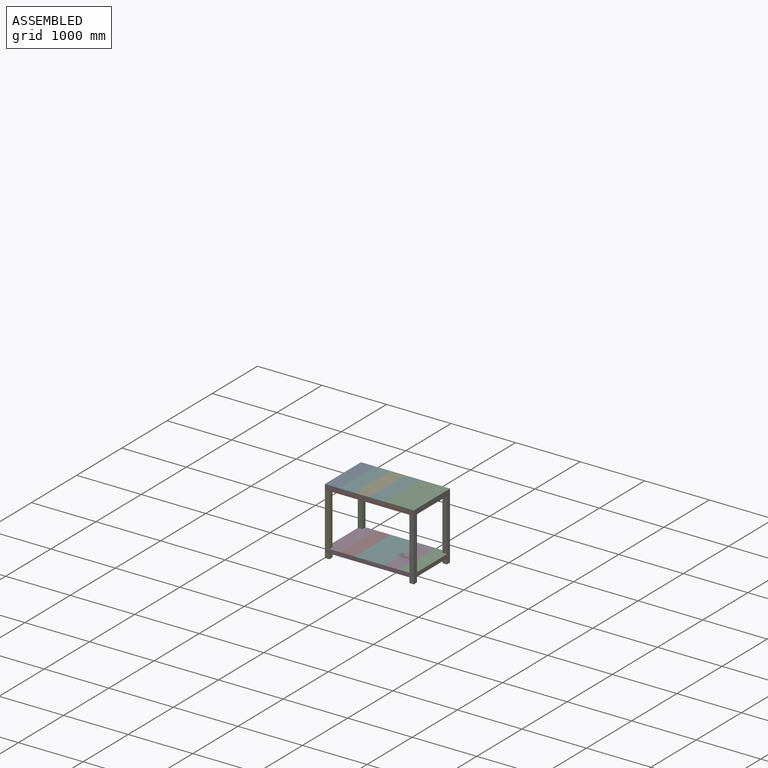
[diagram: assembled view]
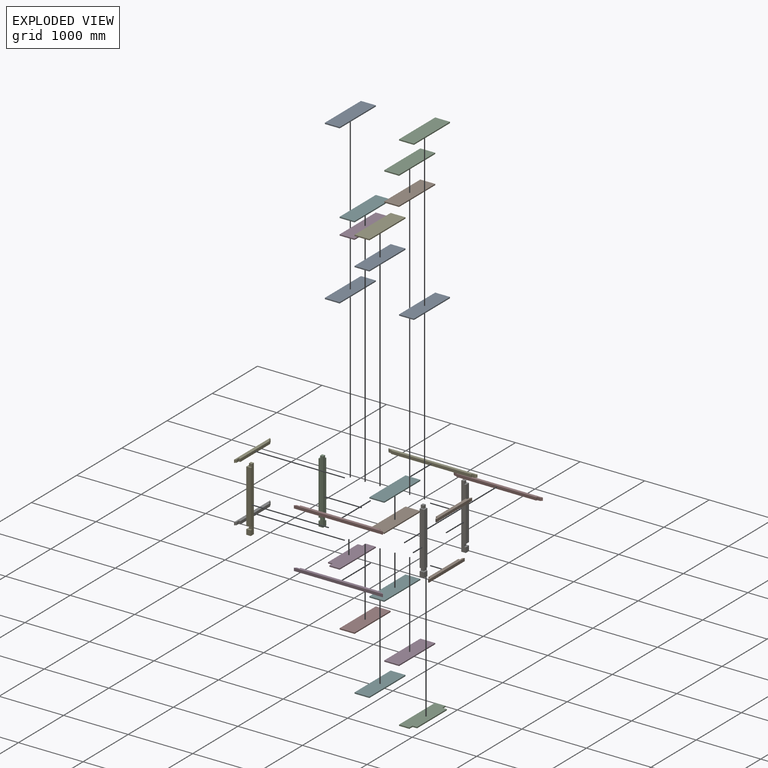
[diagram: exploded view]
GUIDED TOUR — MATED ASSEMBLY (Onshape document 5daf5616dd7f4dcc8bc9a4c9, AutoMate assembly 5daf5616dd7f4dcc8bc9a4c9_2254bccb1e6975af0c094e5a_7c94794f6a052412eeb7758e_default)

This assembly has 30 components, labeled P0..P29 below (a component is one placed occurrence of a part; the same part can appear more than once), held together by 29 mates. A mate is a constraint between two components; its type names the relative motion it leaves free:
  FASTENED — locks the two components together rigidly (no relative motion).
Axis/direction vectors are unit vectors and 'through' points are millimeter coordinates, both in the assembly's world frame.

MATES
  1. FASTENED "Fastened 22": P29 <-> P26, direction (0.000, 0.000, -1.000) through (473.28, -66.81, 1239.78) mm
  2. FASTENED "Fastened 17": P17 <-> P0, direction (0.000, 0.000, -1.000) through (703.28, -66.81, 1221.78) mm
  3. FASTENED "Fastened 15": P24 <-> P25, direction (0.000, 0.000, -1.000) through (243.28, -66.81, 1221.78) mm
  4. FASTENED "Fastened 6": P18 <-> P15, direction (0.000, 1.000, 0.000) through (-421.72, -91.81, 324.28) mm
  5. FASTENED "Fastened 16": P25 <-> P17, direction (0.000, 0.000, -1.000) through (473.28, -66.81, 1221.78) mm
  6. FASTENED "Fastened 11": P18 <-> P12, direction (0.000, 1.000, 0.000) through (-421.72, -91.81, 1199.28) mm
  7. FASTENED "Fastened 2": P6 <-> P1, direction (1.000, 0.000, 0.000) through (908.28, -91.81, 1199.28) mm
  8. FASTENED "Fastened 8": P6 <-> P9, direction (1.000, 0.000, 0.000) through (908.28, -91.81, 324.28) mm
  9. FASTENED "Fastened 21": P20 <-> P29, direction (0.000, 0.000, -1.000) through (243.28, -66.81, 1239.78) mm
  10. FASTENED "Fastened 9": P18 <-> P22, direction (-1.000, 0.000, 0.000) through (-421.72, -91.81, 324.28) mm
  11. FASTENED "Fastened 7": P28 <-> P4, direction (-1.000, 0.000, 0.000) through (-421.72, -841.81, 1199.28) mm
  12. FASTENED "Fastened 4": P14 <-> P7, direction (0.000, -1.000, 0.000) through (908.28, -841.81, 1199.28) mm
  13. FASTENED "Fastened 26": P23 <-> P5, direction (0.000, 0.000, -1.000) through (13.28, -66.81, 346.78) mm
  14. FASTENED "Fastened 14": P11 <-> P24, direction (0.000, 0.000, -1.000) through (13.28, -66.81, 1221.78) mm
  15. FASTENED "Fastened 27": P5 <-> P13, direction (0.000, 0.000, -1.000) through (243.28, -66.81, 346.78) mm
  16. FASTENED "Fastened 20": P21 <-> P20, direction (0.000, 0.000, -1.000) through (13.28, -66.81, 1239.78) mm
  17. FASTENED "Fastened 13": P8 <-> P11, direction (0.000, 0.000, 1.000) through (-216.72, -66.81, 1221.78) mm
  18. FASTENED "Fastened 28": P13 <-> P27, direction (0.000, 0.000, -1.000) through (473.28, -66.81, 346.78) mm
  19. FASTENED "Fastened 19": P16 <-> P21, direction (0.000, 0.000, -1.000) through (-216.72, -66.81, 1239.78) mm
  20. FASTENED "Fastened 5": P14 <-> P3, direction (0.000, -1.000, 0.000) through (908.28, -841.81, 324.28) mm
  21. FASTENED "Fastened 24": P22 <-> P19, direction (0.000, 0.000, 1.000) through (-396.72, -136.81, 346.78) mm
  22. FASTENED "Fastened 10": P6 <-> P12, direction (0.000, 1.000, 0.000) through (908.28, -91.81, 1199.28) mm
  23. FASTENED "Fastened 3": P18 <-> P4, direction (-1.000, 0.000, 0.000) through (-421.72, -91.81, 1199.28) mm
  24. FASTENED "Fastened 25": P19 <-> P23, direction (0.000, 0.000, -1.000) through (-216.72, -66.81, 346.78) mm
  25. FASTENED "Fastened 18": P8 <-> P16, direction (0.000, 0.000, 1.000) through (-446.72, -66.81, 1239.78) mm
  26. FASTENED "Fastened 1": P14 <-> P1, direction (1.000, 0.000, 0.000) through (908.28, -841.81, 1199.28) mm
  27. FASTENED "Fastened 29": P27 <-> P2, direction (0.000, 0.000, -1.000) through (703.28, -66.81, 346.78) mm
  28. FASTENED "Fastened 23": P26 <-> P10, direction (0.000, 0.000, -1.000) through (703.28, -66.81, 1239.78) mm
  29. FASTENED "Fastened 12": P12 <-> P8, direction (0.000, 0.000, 1.000) through (-446.72, -66.81, 1221.78) mm

ASSEMBLY ORDER
  1. P29 — the base component [order verified]
  2. P20 [order verified]
  3. P16 [order verified]
  4. P10 [order verified]
  5. P21 [order verified]
  6. P26 [order verified]
  7. P0 [order verified]
  8. P8 [order verified]
  9. P25 [order verified]
  10. P24 [order verified]
  11. P11 [order verified]
  12. P17 [order verified]
  13. P12 [order verified]
  14. P19 [order verified]
  15. P13 [order verified]
  16. P23 [order verified]
  17. P27 [order verified]
  18. P5 [order verified]
  19. P14 [order verified]
  20. P6 [order verified]
  21. P28 [order verified]
  22. P18 [order verified]
  23. P4 [order verified]
  24. P9 [order verified]
  25. P2 [order verified]
  26. P1 [order verified]
  27. P22 [order verified]
  28. P3 [order verified]
  29. P15 [order verified]
  30. P7 [order verified]
(P0, P16, P17, P20, P21 verified with a relaxed clearance tolerance: the source model stores slight part interference there.)
Order-tag legend:
  [order verified] — this step's position reverses a verified removal order: the component was checked to insert without passing through the ones already placed.

Of the 30 components, 30 carry the full construction recipe — the FeatureScript program that regenerates the part's solid from scratch; the rest are supplied as boundary geometry only.
Because this assembly has more than 12 components, the tour below covers the 12 most significant ones individually (every recipe-attached component first, then the largest by part volume), in assembly order; the remaining 18 are summarized together in a grouped section at the end.
Each toured component is shown spotlighted twice — in the assembled view, then in the exploded view, where a leader line traces a displaced component back to its assembled socket (saturated green if recipe-attached, orange if geometry-only; every other component desaturated gray) — followed by its recipe or geometry summary and the mates that hold it.
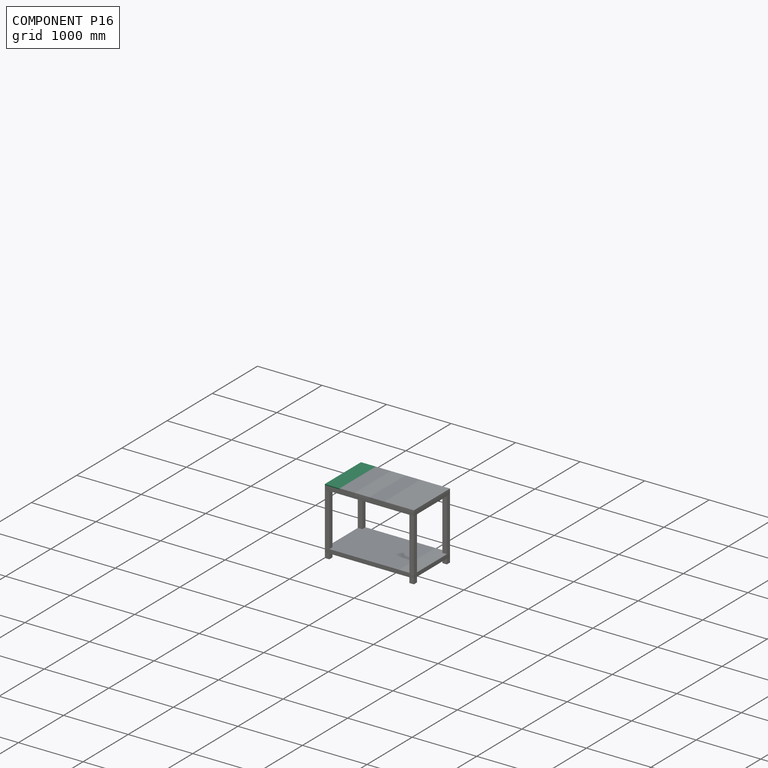
[diagram: component P16 — assembled]
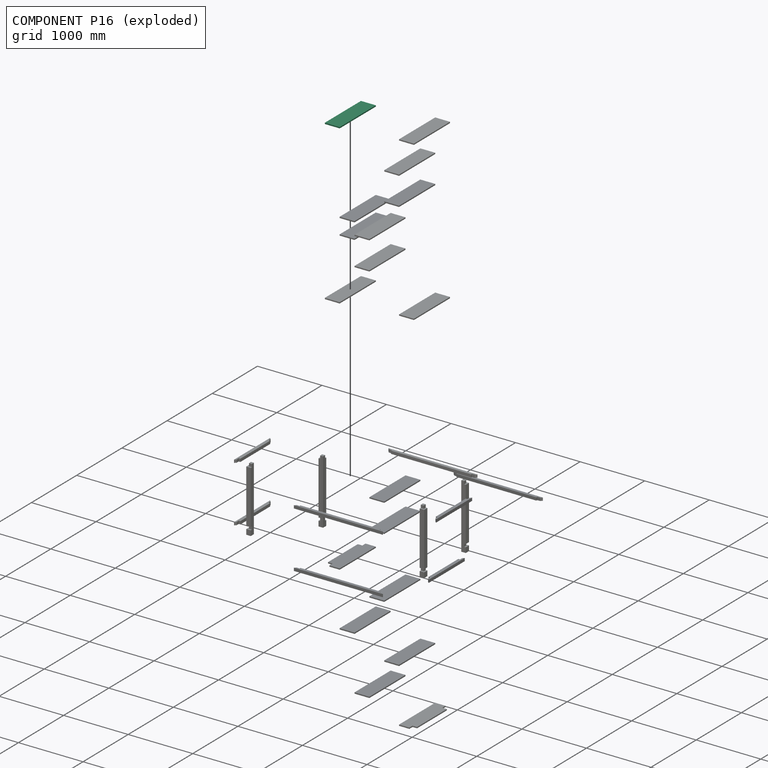
[diagram: component P16 — exploded]
COMPONENT P16 — same part as P0 (CADFS 00208391); its construction recipe is shown at P0.
Held by: FASTENED mate "Fastened 19" to P21; FASTENED mate "Fastened 18" to P8.
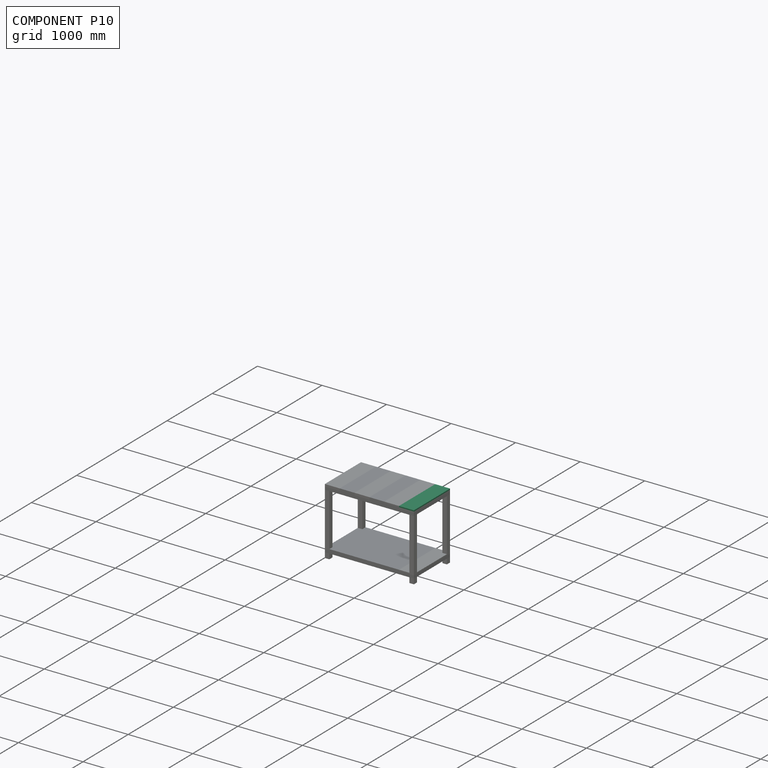
[diagram: component P10 — assembled]
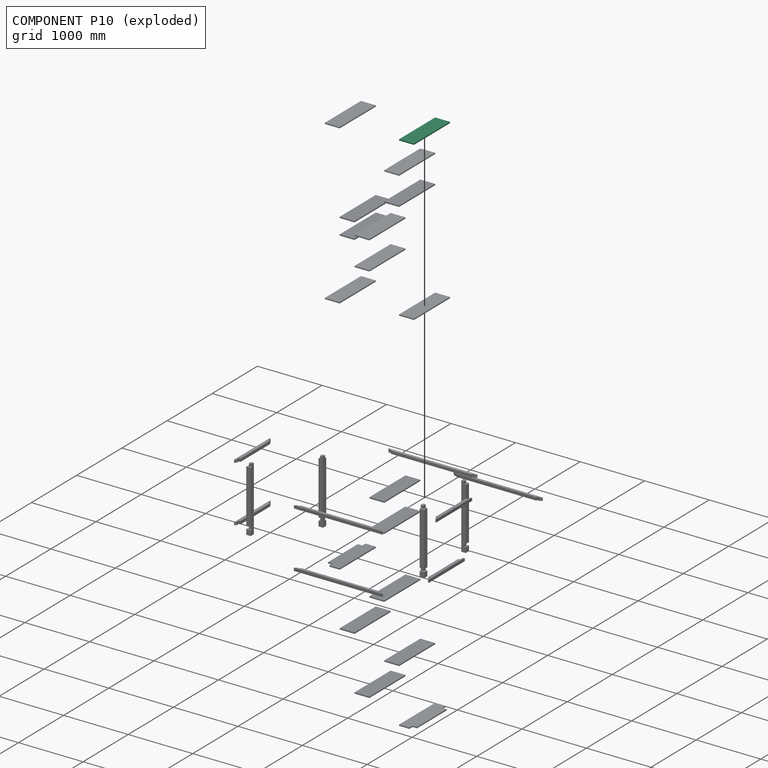
[diagram: component P10 — exploded]
COMPONENT P10 — same part as P0 (CADFS 00208391); its construction recipe is shown at P0.
Held by: FASTENED mate "Fastened 23" to P26.
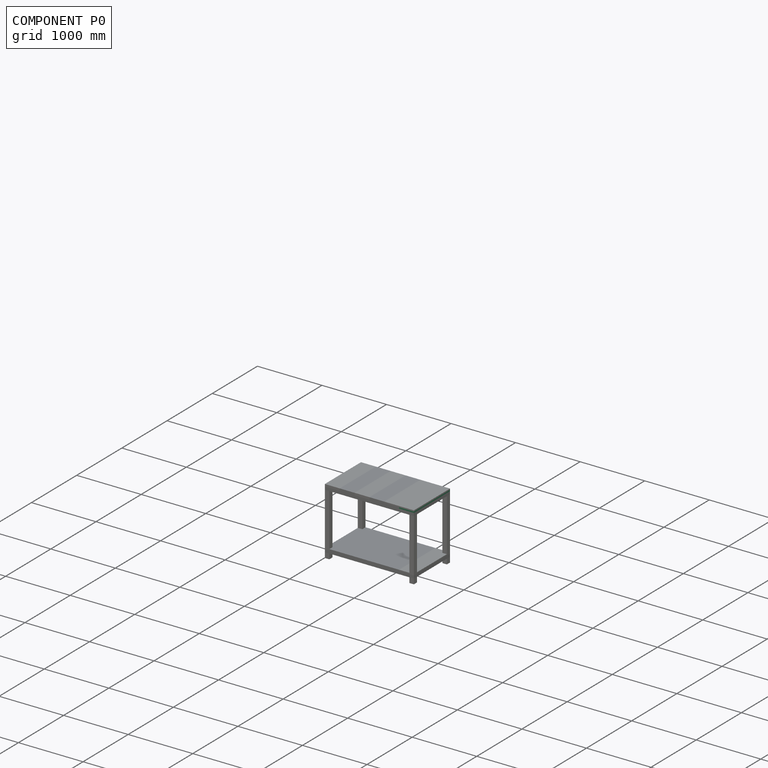
[diagram: component P0 — assembled]
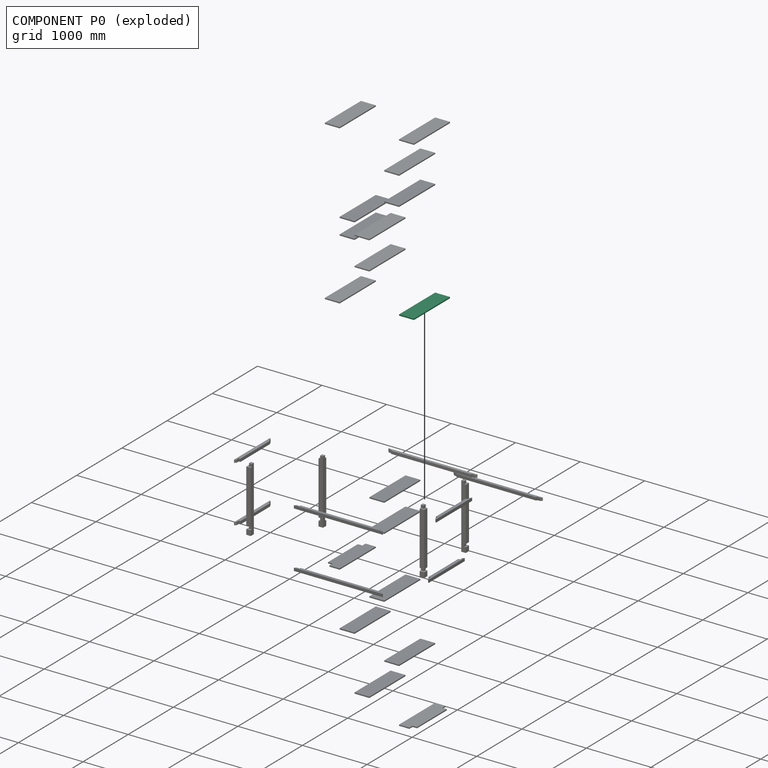
[diagram: component P0 — exploded]
COMPONENT P0 — recipe-attached (CADFS 00208391, mesh-verified: the recipe's output STEP matches this component's geometry to below the mesh-comparison resolution (tessellation chordal tolerance ~1.25 mm)).
Held by: FASTENED mate "Fastened 17" to P17.
Construction recipe (FeatureScript — the CAD program that rebuilds this solid; sketch coordinates are in the units given by the * unit suffixes, e.g. mm):

FeatureScript 1511;
import(path : "onshape/std/geometry.fs", version : "1511.0");
import(path : "onshape/std/common.fs", version : "1511.0");
const mm = millimeter;
const VERTEX = EntityType.VERTEX;
const EDGE = EntityType.EDGE;
const FACE = EntityType.FACE;
const BODY = EntityType.BODY;
function v(x, y){return vector(x, y);}
function OD(order){return orderDisambiguation(order);}
function OSD(set){return originalSetDisambiguation(set);}
function TD(topology){return topologyDisambiguation(topology);}
function TDD(query){return trueDependencyDisambiguation(query);}
function sQuery(a, b, c) {return sketchEntityQuery(a, b, c);}

annotation { "Feature Type Name" : "Feature", "Feature Type Description" : "" }
export const myFeature = defineFeature(function(context is Context, id is Id, definition is map)
    precondition{}
    {
        {
            var Q0;
            Q0=qCreatedBy(makeId("Front.planeOp"),FACE);
            var sketch = newSketch(context, id + "F0", { "sketchPlane" : qUnion([Q0])});
            skLineSegment(sketch, "E0.bottom", {"start": v(-98, 9.5) * mm, "end": v(132, 9.5) * mm});
            skLineSegment(sketch, "E0.top", {"start": v(-98, -8.5) * mm, "end": v(132, -8.5) * mm});
            skLineSegment(sketch, "E0.left", {"start": v(-98, 9.5) * mm, "end": v(-98, -8.5) * mm});
            skLineSegment(sketch, "E0.right", {"start": v(132, 9.5) * mm, "end": v(132, -8.5) * mm});
            skSolve(sketch);
        }
        {
            var Q0;
            Q0=makeQuery(id+"F0.imprint","IMPRINT",FACE,{"disambiguationData":[TD([[makeQuery(id+"F0.imprint","IMPRINT",EDGE,{"derivedFrom":sQuery(id+"F0.wireOp",EDGE,"E0.bottom")}),-1.0]])]});
            extrude(context, id + "F1", {"entities" : qUnion([Q0]), "oppositeDirection" : true, "depth" : 800 * mm});
        }
    });
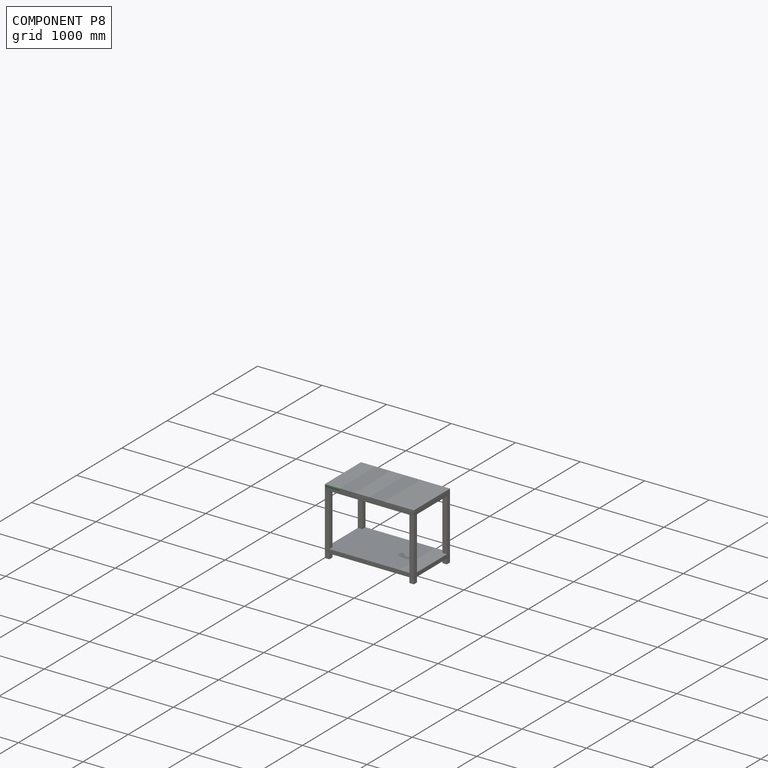
[diagram: component P8 — assembled]
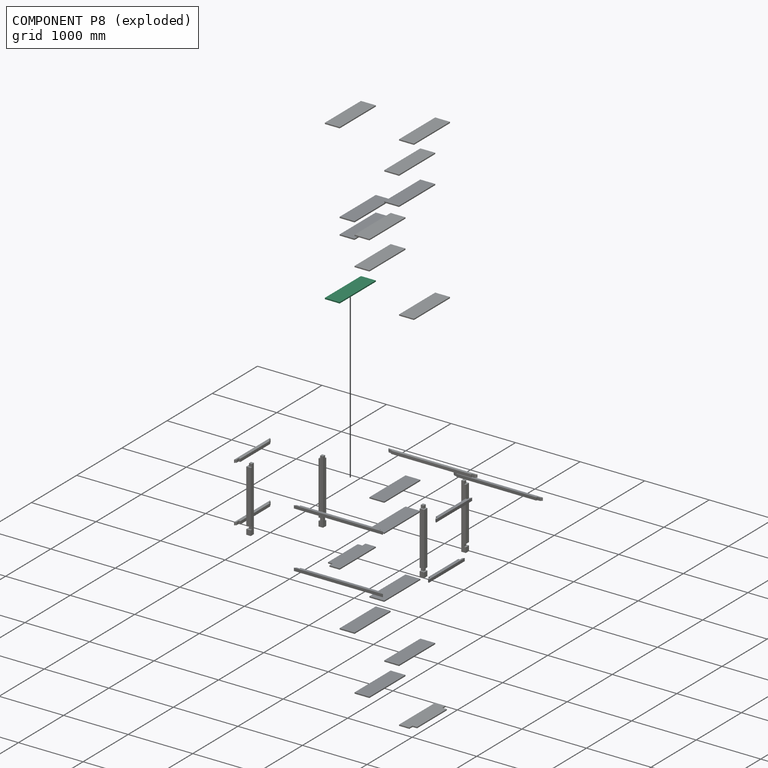
[diagram: component P8 — exploded]
COMPONENT P8 — same part as P0 (CADFS 00208391); its construction recipe is shown at P0.
Held by: FASTENED mate "Fastened 13" to P11; FASTENED mate "Fastened 18" to P16; FASTENED mate "Fastened 12" to P12.
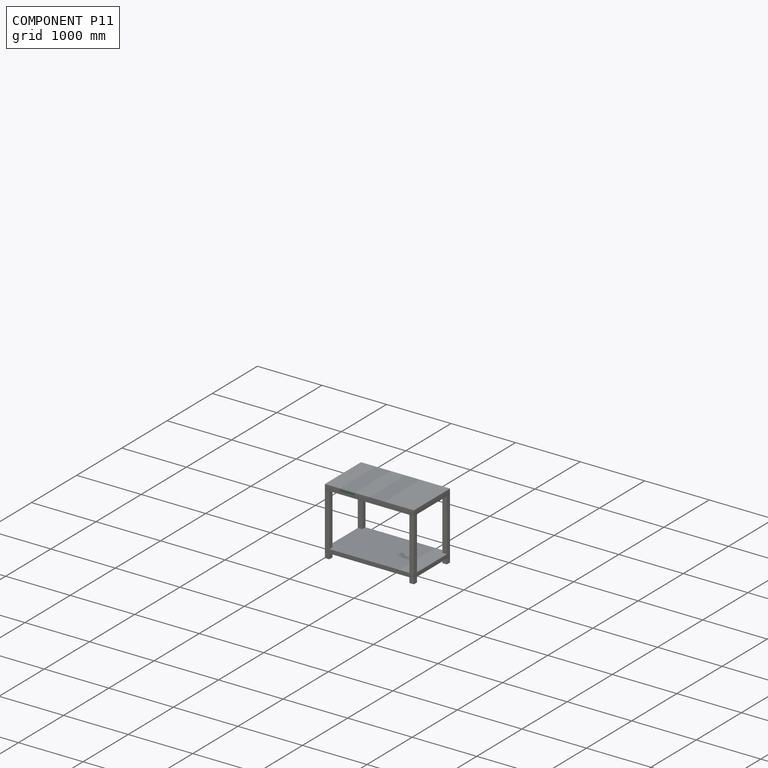
[diagram: component P11 — assembled]
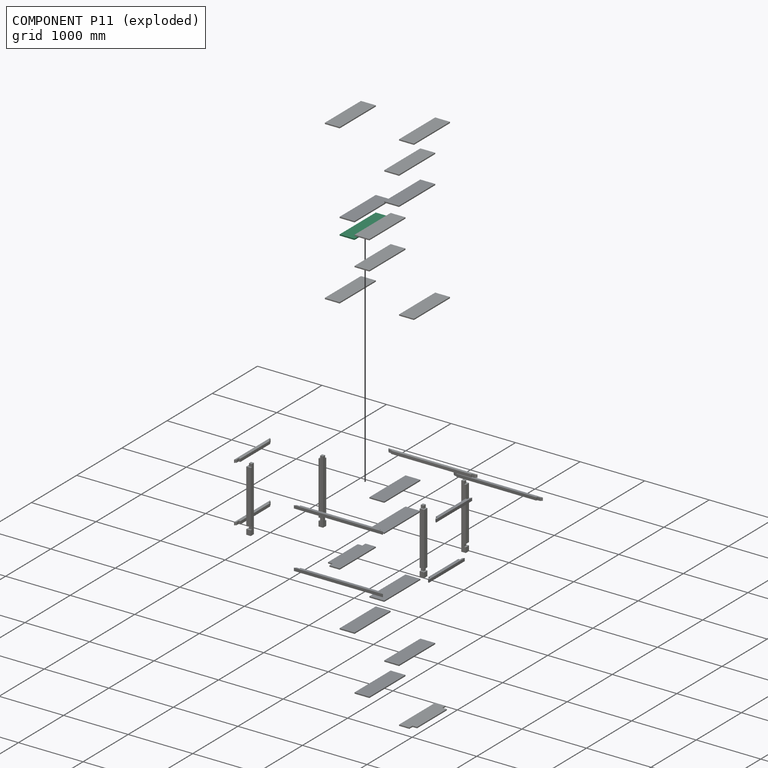
[diagram: component P11 — exploded]
COMPONENT P11 — same part as P0 (CADFS 00208391); its construction recipe is shown at P0.
Held by: FASTENED mate "Fastened 14" to P24; FASTENED mate "Fastened 13" to P8.
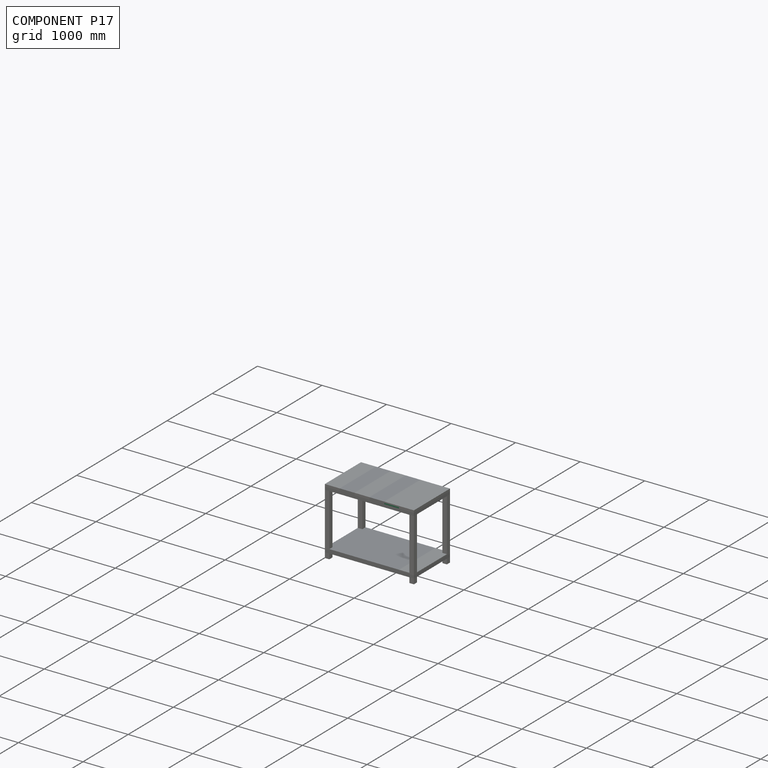
[diagram: component P17 — assembled]
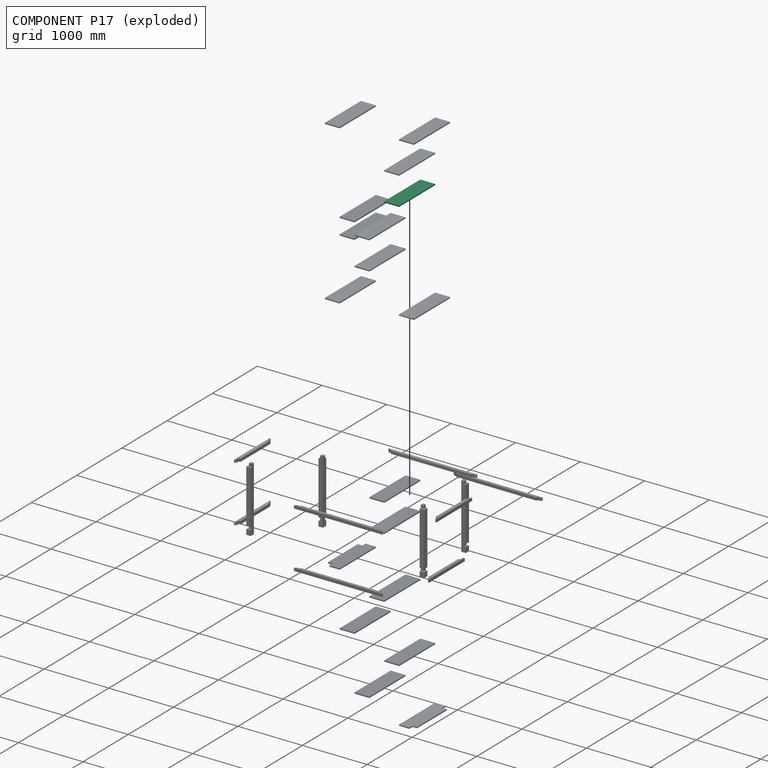
[diagram: component P17 — exploded]
COMPONENT P17 — same part as P0 (CADFS 00208391); its construction recipe is shown at P0.
Held by: FASTENED mate "Fastened 17" to P0; FASTENED mate "Fastened 16" to P25.
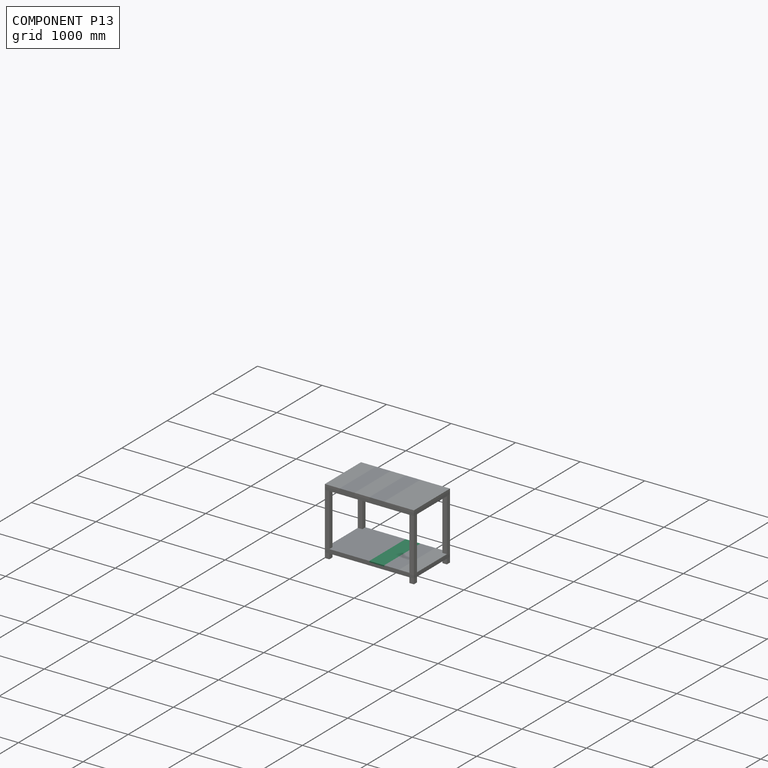
[diagram: component P13 — assembled]
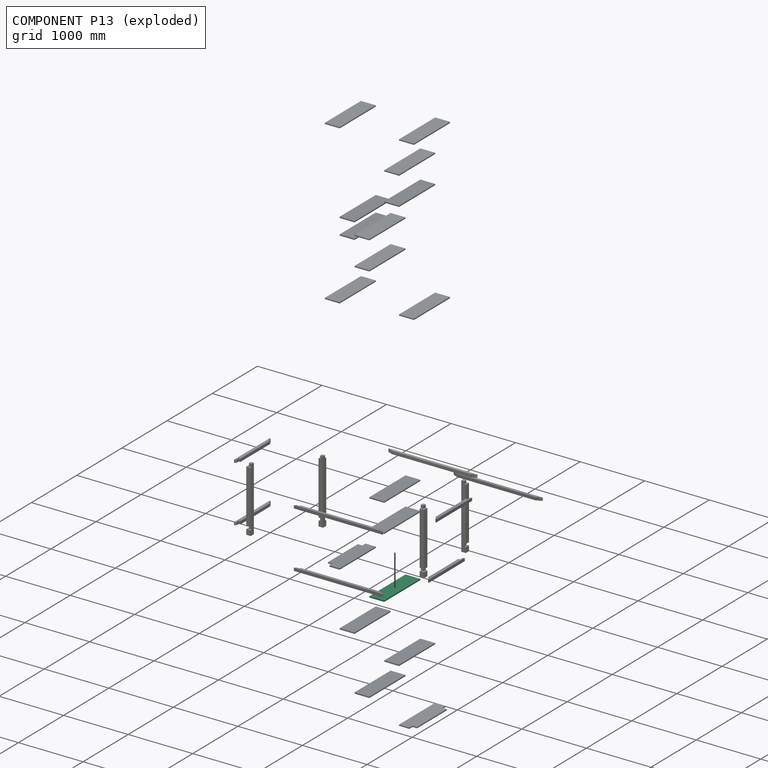
[diagram: component P13 — exploded]
COMPONENT P13 — same part as P0 (CADFS 00208391); its construction recipe is shown at P0.
Held by: FASTENED mate "Fastened 27" to P5; FASTENED mate "Fastened 28" to P27.
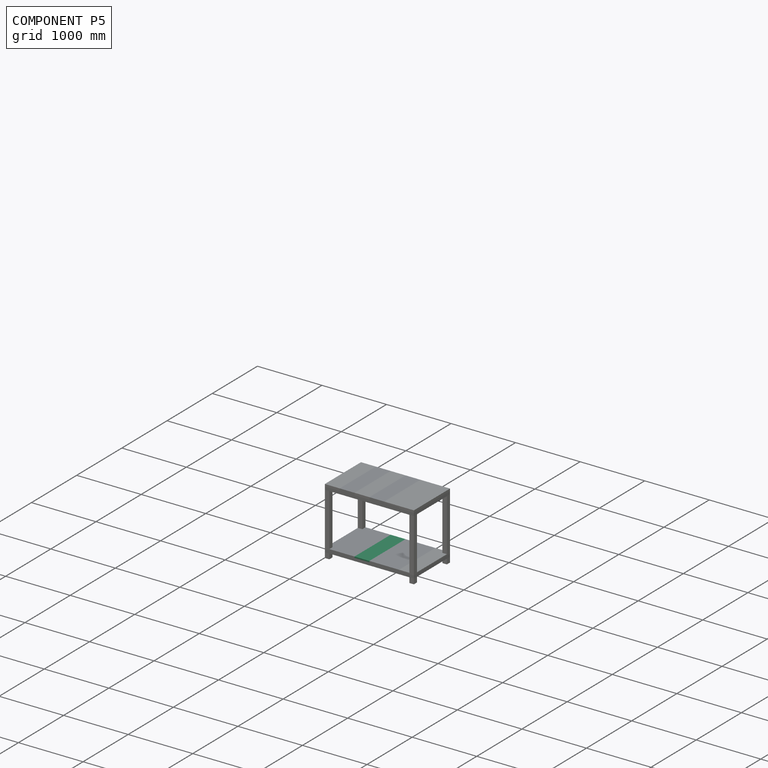
[diagram: component P5 — assembled]
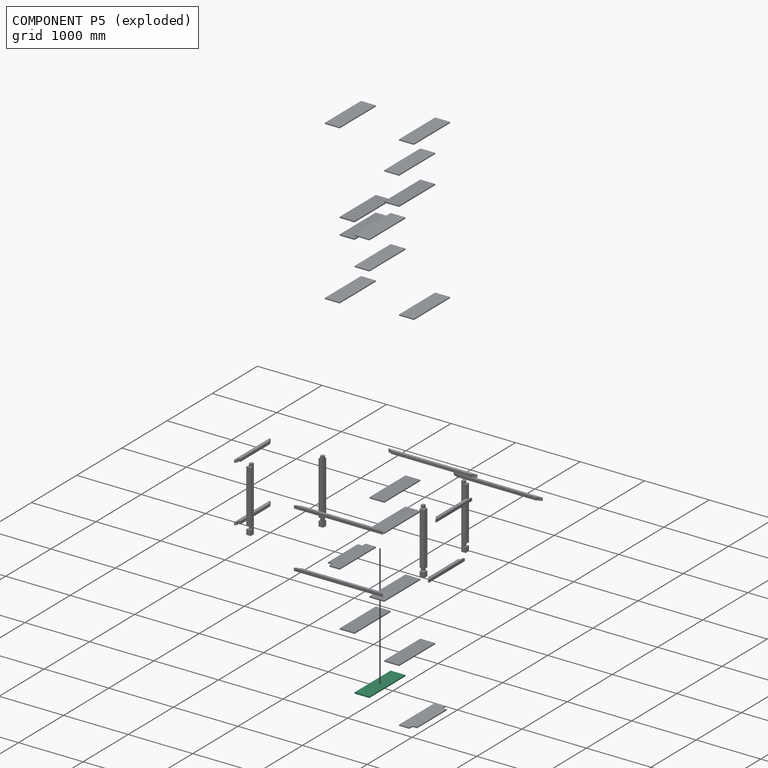
[diagram: component P5 — exploded]
COMPONENT P5 — same part as P0 (CADFS 00208391); its construction recipe is shown at P0.
Held by: FASTENED mate "Fastened 26" to P23; FASTENED mate "Fastened 27" to P13.
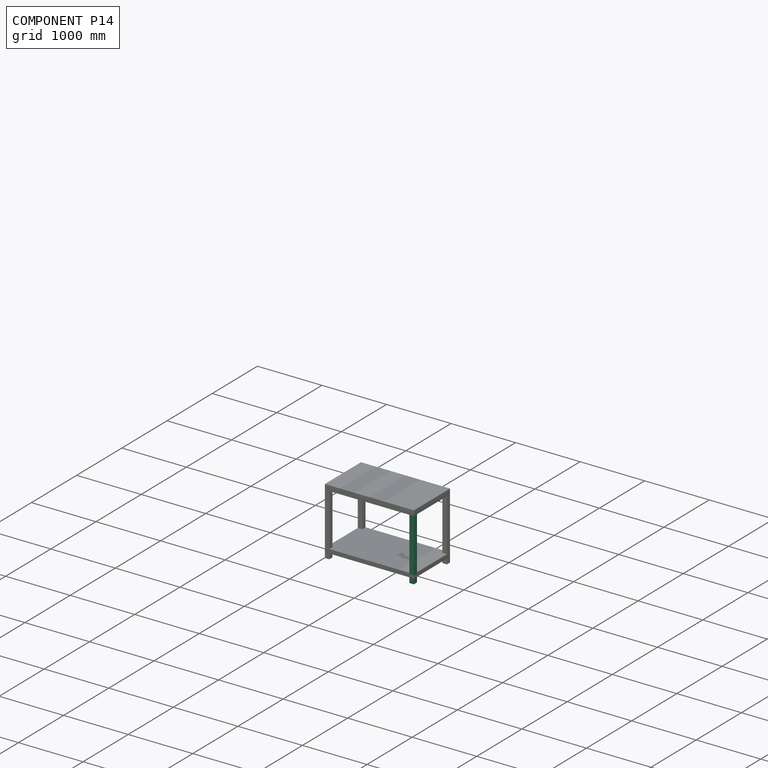
[diagram: component P14 — assembled]
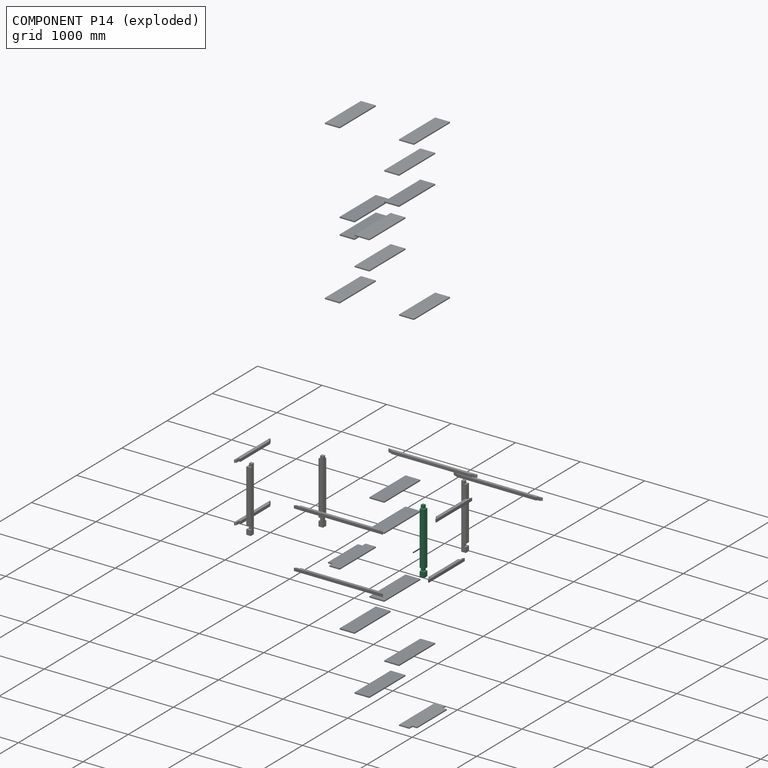
[diagram: component P14 — exploded]
COMPONENT P14 — same part as P6 (CADFS 00208388); its construction recipe is shown at P6.
Held by: FASTENED mate "Fastened 4" to P7; FASTENED mate "Fastened 5" to P3; FASTENED mate "Fastened 1" to P1.
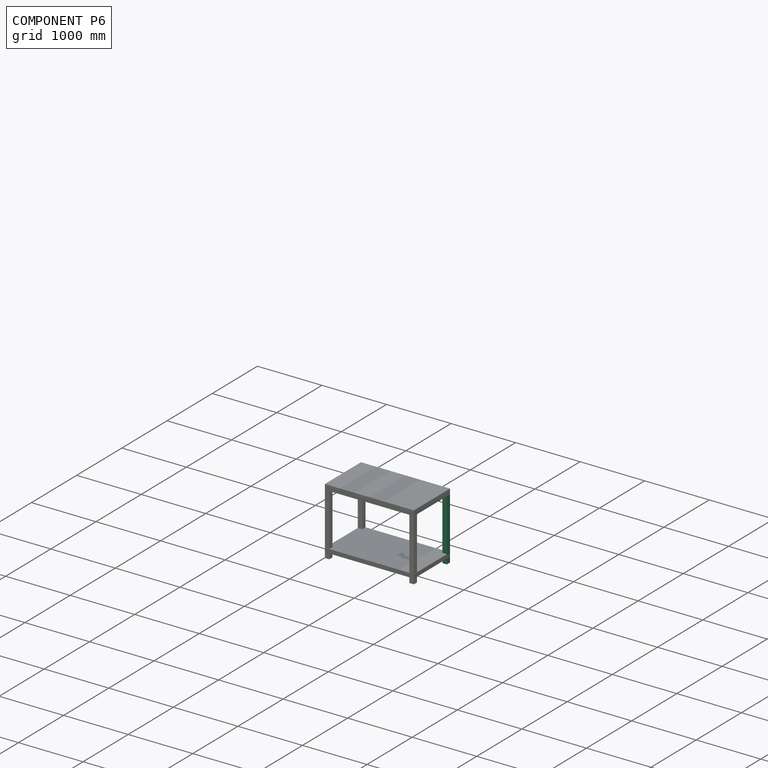
[diagram: component P6 — assembled]
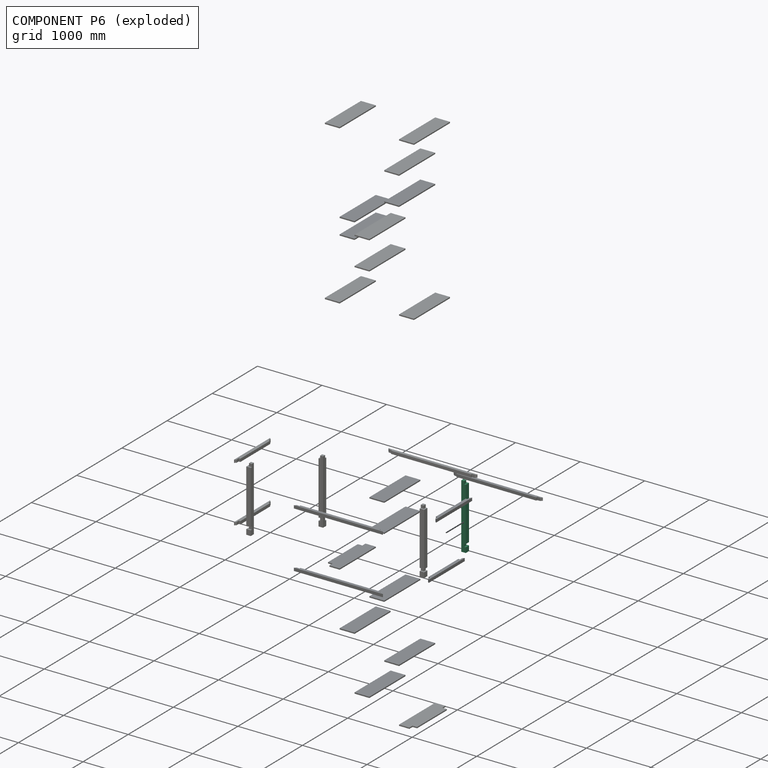
[diagram: component P6 — exploded]
COMPONENT P6 — recipe-attached (CADFS 00208388, mesh-verified: the recipe's output STEP matches this component's geometry to below the mesh-comparison resolution (tessellation chordal tolerance ~1.51 mm)).
Held by: FASTENED mate "Fastened 2" to P1; FASTENED mate "Fastened 8" to P9; FASTENED mate "Fastened 10" to P12.
Construction recipe (FeatureScript — the CAD program that rebuilds this solid; sketch coordinates are in the units given by the * unit suffixes, e.g. mm):

FeatureScript 1511;
import(path : "onshape/std/geometry.fs", version : "1511.0");
import(path : "onshape/std/common.fs", version : "1511.0");
const mm = millimeter;
const VERTEX = EntityType.VERTEX;
const EDGE = EntityType.EDGE;
const FACE = EntityType.FACE;
const BODY = EntityType.BODY;
function v(x, y){return vector(x, y);}
function OD(order){return orderDisambiguation(order);}
function OSD(set){return originalSetDisambiguation(set);}
function TD(topology){return topologyDisambiguation(topology);}
function TDD(query){return trueDependencyDisambiguation(query);}
function sQuery(a, b, c) {return sketchEntityQuery(a, b, c);}

annotation { "Feature Type Name" : "Feature", "Feature Type Description" : "" }
export const myFeature = defineFeature(function(context is Context, id is Id, definition is map)
    precondition{}
    {
        {
            var Q0;
            Q0=qCreatedBy(makeId("Front.planeOp"),FACE);
            var sketch = newSketch(context, id + "F0", { "sketchPlane" : qUnion([Q0])});
            skLineSegment(sketch, "E0.bottom", {"start": v(-35, 35) * mm, "end": v(35, 35) * mm});
            skLineSegment(sketch, "E0.top", {"start": v(-35, -35) * mm, "end": v(35, -35) * mm});
            skLineSegment(sketch, "E0.left", {"start": v(-35, 35) * mm, "end": v(-35, -35) * mm});
            skLineSegment(sketch, "E0.right", {"start": v(35, 35) * mm, "end": v(35, -35) * mm});
            skSolve(sketch);
        }
        {
            var Q0;
            Q0=makeQuery(id+"F0.imprint","IMPRINT",FACE,{"disambiguationData":[TD([[makeQuery(id+"F0.imprint","IMPRINT",EDGE,{"derivedFrom":sQuery(id+"F0.wireOp",EDGE,"E0.bottom")}),-1.0]])]});
            extrude(context, id + "F1", {"entities" : qUnion([Q0]), "oppositeDirection" : true, "depth" : 1000 * mm});
        }
        {
            var Q0;
            Q0=makeQuery(id+"F1.opExtrude","SWEPT_FACE",FACE,{"disambiguationData":[OSD([sQuery(id+"F0.wireOp",EDGE,"E0.bottom")])]});
            var sketch = newSketch(context, id + "F2", { "sketchPlane" : qUnion([Q0])});
            skLineSegment(sketch, "E1.bottom", {"start": v(-35, 45) * mm, "end": v(35, 45) * mm});
            skLineSegment(sketch, "E1.top", {"start": v(-35, 0) * mm, "end": v(35, 0) * mm});
            skLineSegment(sketch, "E1.left", {"start": v(-35, 45) * mm, "end": v(-35, 0) * mm});
            skLineSegment(sketch, "E1.right", {"start": v(35, 45) * mm, "end": v(35, 0) * mm});
            skSolve(sketch);
        }
        {
            var Q0;
            Q0=makeQuery(id+"F2.imprint","IMPRINT",FACE,{"disambiguationData":[TD([[makeQuery(id+"F2.imprint","IMPRINT",EDGE,{"derivedFrom":sQuery(id+"F2.wireOp",EDGE,"E1.bottom")}),-1.0]])]});
            extrude(context, id + "F3", {"entities" : qUnion([Q0]), "operationType" : NewBodyOperationType.REMOVE, "oppositeDirection" : true, "depth" : 25 * mm});
        }
        {
            var Q0;
            Q0=makeQuery(id+"F1.opExtrude","SWEPT_FACE",FACE,{"disambiguationData":[OSD([sQuery(id+"F0.wireOp",EDGE,"E0.right")])]});
            var sketch = newSketch(context, id + "F4", { "sketchPlane" : qUnion([Q0])});
            skLineSegment(sketch, "E2.bottom", {"start": v(45, 10) * mm, "end": v(0, 10) * mm});
            skLineSegment(sketch, "E2.top", {"start": v(45, -35) * mm, "end": v(0, -35) * mm});
            skLineSegment(sketch, "E2.left", {"start": v(45, 10) * mm, "end": v(45, -35) * mm});
            skLineSegment(sketch, "E2.right", {"start": v(0, 10) * mm, "end": v(0, -35) * mm});
            skSolve(sketch);
        }
        {
            var Q0;
            Q0=makeQuery(id+"F4.imprint","IMPRINT",FACE,{"disambiguationData":[TD([[makeQuery(id+"F4.imprint","IMPRINT",EDGE,{"derivedFrom":sQuery(id+"F4.wireOp",EDGE,"E2.top")}),-1.0]])]});
            extrude(context, id + "F5", {"entities" : qUnion([Q0]), "operationType" : NewBodyOperationType.REMOVE, "oppositeDirection" : true, "depth" : 25 * mm});
        }
        {
            var Q0;
            Q0=makeQuery(id+"F1.opExtrude","SWEPT_FACE",FACE,{"disambiguationData":[OSD([sQuery(id+"F0.wireOp",EDGE,"E0.bottom")])]});
            var sketch = newSketch(context, id + "F6", { "sketchPlane" : qUnion([Q0])});
            skLineSegment(sketch, "E3.bottom", {"start": v(-35, 920) * mm, "end": v(35, 920) * mm});
            skLineSegment(sketch, "E3.top", {"start": v(-35, 875) * mm, "end": v(35, 875) * mm});
            skLineSegment(sketch, "E3.left", {"start": v(-35, 920) * mm, "end": v(-35, 875) * mm});
            skLineSegment(sketch, "E3.right", {"start": v(35, 920) * mm, "end": v(35, 875) * mm});
            skSolve(sketch);
        }
        {
            var Q0;
            Q0=makeQuery(id+"F6.imprint","IMPRINT",FACE,{"disambiguationData":[TD([[makeQuery(id+"F6.imprint","IMPRINT",EDGE,{"derivedFrom":sQuery(id+"F6.wireOp",EDGE,"E3.bottom")}),-1.0]])]});
            extrude(context, id + "F7", {"entities" : qUnion([Q0]), "operationType" : NewBodyOperationType.REMOVE, "oppositeDirection" : true, "depth" : 25 * mm});
        }
        {
            var Q0;
            Q0=makeQuery(id+"F1.opExtrude","SWEPT_FACE",FACE,{"disambiguationData":[OSD([sQuery(id+"F0.wireOp",EDGE,"E0.right")])]});
            var sketch = newSketch(context, id + "F8", { "sketchPlane" : qUnion([Q0])});
            skLineSegment(sketch, "E4.bottom", {"start": v(920, 10) * mm, "end": v(875, 10) * mm});
            skLineSegment(sketch, "E4.top", {"start": v(920, -35) * mm, "end": v(875, -35) * mm});
            skLineSegment(sketch, "E4.left", {"start": v(920, 10) * mm, "end": v(920, -35) * mm});
            skLineSegment(sketch, "E4.right", {"start": v(875, 10) * mm, "end": v(875, -35) * mm});
            skSolve(sketch);
        }
        {
            var Q0;
            Q0=makeQuery(id+"F8.imprint","IMPRINT",FACE,{"disambiguationData":[TD([[makeQuery(id+"F8.imprint","IMPRINT",EDGE,{"derivedFrom":sQuery(id+"F8.wireOp",EDGE,"E4.bottom")}),1.0]])]});
            extrude(context, id + "F9", {"entities" : qUnion([Q0]), "operationType" : NewBodyOperationType.REMOVE, "oppositeDirection" : true, "depth" : 25 * mm});
        }
    });
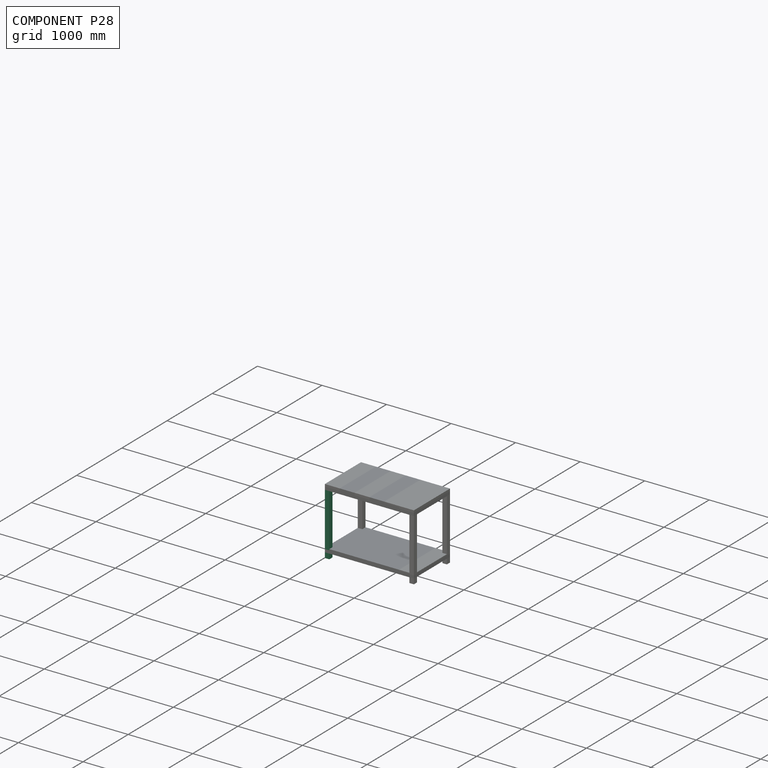
[diagram: component P28 — assembled]
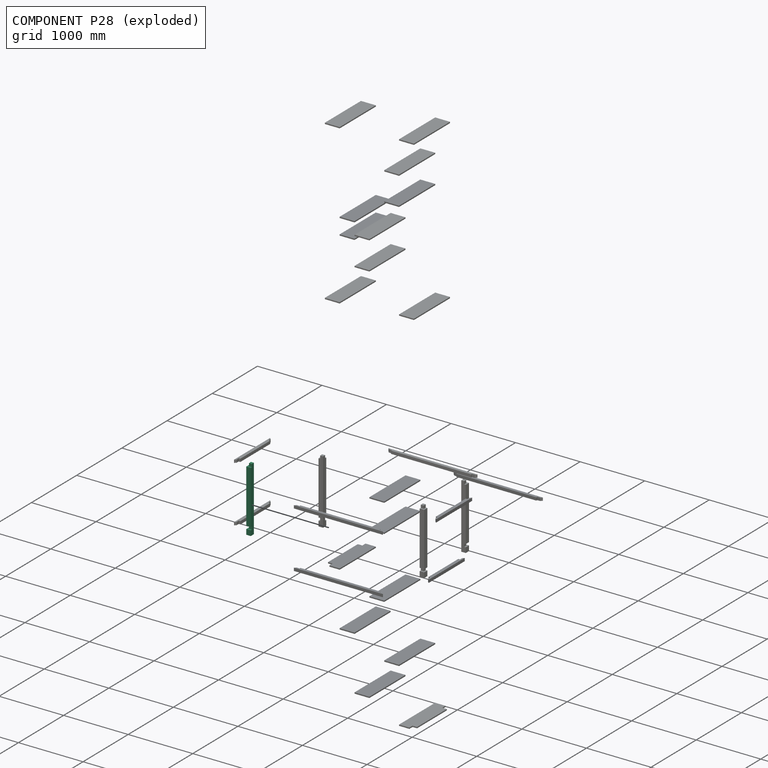
[diagram: component P28 — exploded]
COMPONENT P28 — same part as P6 (CADFS 00208388); its construction recipe is shown at P6.
Held by: FASTENED mate "Fastened 7" to P4.
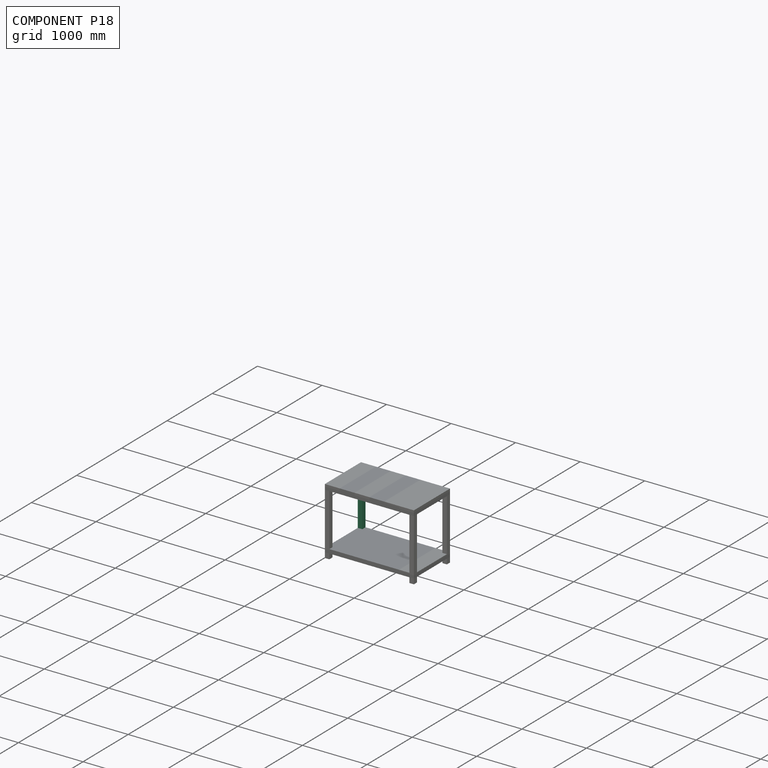
[diagram: component P18 — assembled]
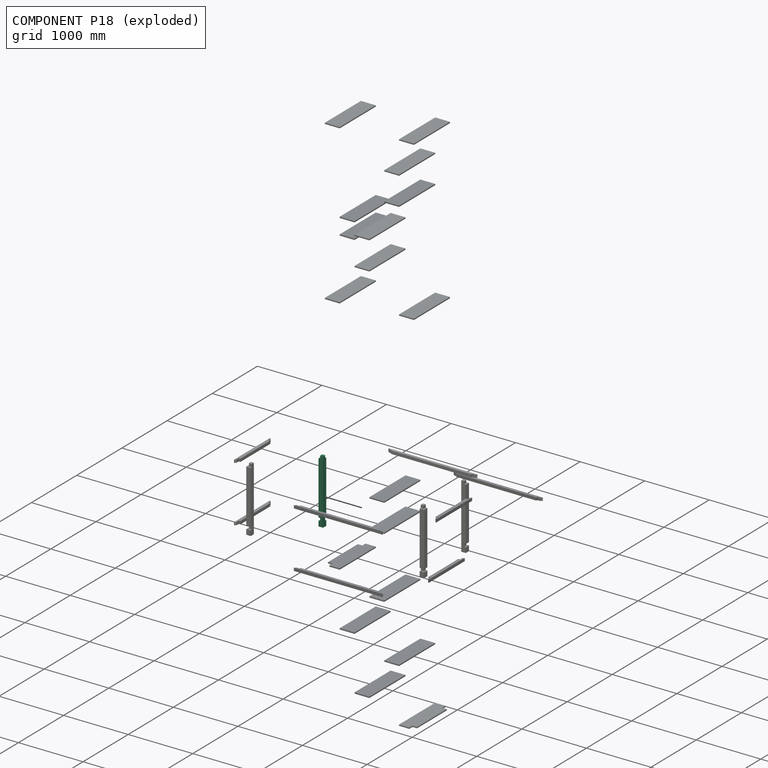
[diagram: component P18 — exploded]
COMPONENT P18 — same part as P6 (CADFS 00208388); its construction recipe is shown at P6.
Held by: FASTENED mate "Fastened 6" to P15; FASTENED mate "Fastened 11" to P12; FASTENED mate "Fastened 9" to P22; FASTENED mate "Fastened 3" to P4.
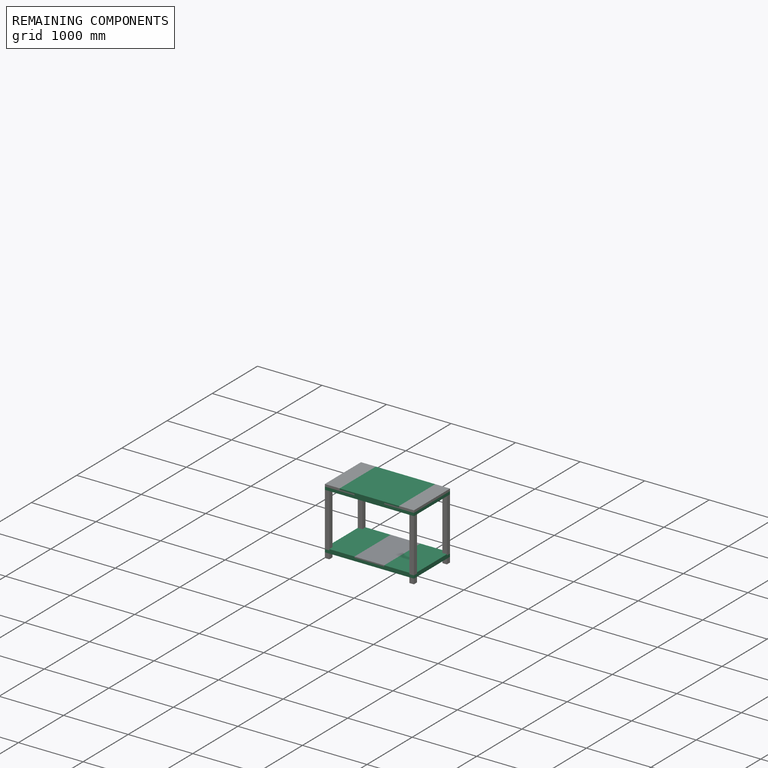
[diagram: remaining components — assembled]
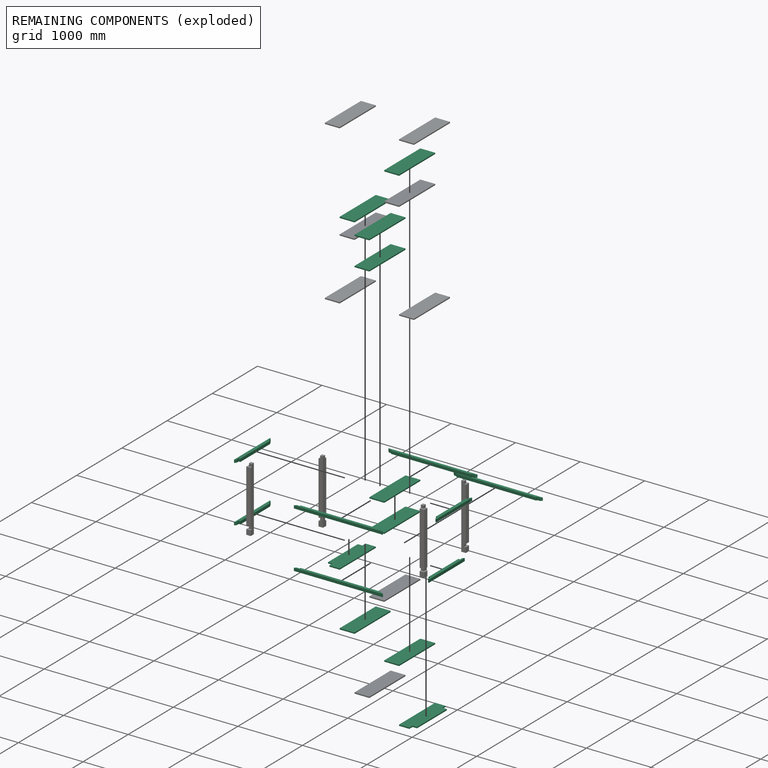
[diagram: remaining components — exploded]
REMAINING COMPONENTS (grouped) — the 18 components below fall outside the per-component tour by the significance rule stated above; both spotlight views highlight the whole group.
  P29: bounding box 800.0 x 230.0 x 18.0 mm, volume 3312000 mm^3. Recipe-attached (CADFS 00208391; recipe not printed under the significance rule). Held by: FASTENED mate "Fastened 22" to P26; FASTENED mate "Fastened 21" to P20.
  P20: bounding box 800.0 x 230.0 x 18.0 mm, volume 3312000 mm^3. Recipe-attached (CADFS 00208391; recipe not printed under the significance rule). Held by: FASTENED mate "Fastened 21" to P29; FASTENED mate "Fastened 20" to P21.
  P21: bounding box 800.0 x 230.0 x 18.0 mm, volume 3312000 mm^3. Recipe-attached (CADFS 00208391; recipe not printed under the significance rule). Held by: FASTENED mate "Fastened 20" to P20; FASTENED mate "Fastened 19" to P16.
  P26: bounding box 800.0 x 230.0 x 18.0 mm, volume 3312000 mm^3. Recipe-attached (CADFS 00208391; recipe not printed under the significance rule). Held by: FASTENED mate "Fastened 22" to P29; FASTENED mate "Fastened 23" to P10.
  P25: bounding box 800.0 x 230.0 x 18.0 mm, volume 3312000 mm^3. Recipe-attached (CADFS 00208391; recipe not printed under the significance rule). Held by: FASTENED mate "Fastened 15" to P24; FASTENED mate "Fastened 16" to P17.
  P24: bounding box 800.0 x 230.0 x 18.0 mm, volume 3312000 mm^3. Recipe-attached (CADFS 00208391; recipe not printed under the significance rule). Held by: FASTENED mate "Fastened 15" to P25; FASTENED mate "Fastened 14" to P11.
  P12: bounding box 1380.0 x 45.0 x 43.5 mm, volume 2559321 mm^3. Recipe-attached (CADFS 00208390; recipe not printed under the significance rule). Held by: FASTENED mate "Fastened 11" to P18; FASTENED mate "Fastened 10" to P6; FASTENED mate "Fastened 12" to P8.
  P19: bounding box 800.0 x 230.0 x 18.0 mm, volume 3135600 mm^3. Recipe-attached (CADFS 00208392; recipe not printed under the significance rule). Held by: FASTENED mate "Fastened 24" to P22; FASTENED mate "Fastened 25" to P23.
  P23: bounding box 800.0 x 230.0 x 18.0 mm, volume 3312000 mm^3. Recipe-attached (CADFS 00208391; recipe not printed under the significance rule). Held by: FASTENED mate "Fastened 26" to P5; FASTENED mate "Fastened 25" to P19.
  P27: bounding box 800.0 x 230.0 x 18.0 mm, volume 3312000 mm^3. Recipe-attached (CADFS 00208391; recipe not printed under the significance rule). Held by: FASTENED mate "Fastened 28" to P13; FASTENED mate "Fastened 29" to P2.
  P4: bounding box 800.0 x 50.0 x 45.0 mm, volume 1614375 mm^3. Recipe-attached (CADFS 00208389; recipe not printed under the significance rule). Held by: FASTENED mate "Fastened 7" to P28; FASTENED mate "Fastened 3" to P18.
  P9: bounding box 800.0 x 50.0 x 45.0 mm, volume 1614375 mm^3. Recipe-attached (CADFS 00208389; recipe not printed under the significance rule). Held by: FASTENED mate "Fastened 8" to P6.
  P2: bounding box 800.0 x 230.0 x 18.0 mm, volume 3135600 mm^3. Recipe-attached (CADFS 00208392; recipe not printed under the significance rule). Held by: FASTENED mate "Fastened 29" to P27.
  P1: bounding box 800.0 x 50.0 x 45.0 mm, volume 1614375 mm^3. Recipe-attached (CADFS 00208389; recipe not printed under the significance rule). Held by: FASTENED mate "Fastened 2" to P6; FASTENED mate "Fastened 1" to P14.
  P22: bounding box 800.0 x 50.0 x 45.0 mm, volume 1614375 mm^3. Recipe-attached (CADFS 00208389; recipe not printed under the significance rule). Held by: FASTENED mate "Fastened 9" to P18; FASTENED mate "Fastened 24" to P19.
  P3: bounding box 1380.0 x 45.0 x 43.5 mm, volume 2559321 mm^3. Recipe-attached (CADFS 00208390; recipe not printed under the significance rule). Held by: FASTENED mate "Fastened 5" to P14.
  P15: bounding box 1380.0 x 45.0 x 43.5 mm, volume 2559321 mm^3. Recipe-attached (CADFS 00208390; recipe not printed under the significance rule). Held by: FASTENED mate "Fastened 6" to P18.
  P7: bounding box 1380.0 x 45.0 x 43.5 mm, volume 2559321 mm^3. Recipe-attached (CADFS 00208390; recipe not printed under the significance rule). Held by: FASTENED mate "Fastened 4" to P14.
PROVENANCE & LICENSES
Assembly (occurrences, transforms, mates, per-part STEP geometry): AutoMate dataset, Zenodo record 7776208, CC0.
Construction recipes: CADFS (HuggingFace VladPyatov/CADFS, CC-BY-4.0, layered over the ABC dataset), FeatureScript reconstruction programs keyed by ABC model id.
Join: ABC meta listings map ABC model id -> Onshape documentId; within a shared document, parts are matched by geometric signature (bounding-box dims + volume at 0.1% relative tolerance, exact B-rep face/solid counts).
Verification: 30 of this assembly's 30 components carry a recipe attachment, and every attachment is mesh-verified: the CADFS STEP and the AutoMate member STEP were compared as meshes in their shared local frame (symmetric sampled-point-to-mesh distance); worst across the 30 attachments: below the mesh-comparison resolution (tessellation chordal tolerance ~2.07 mm) on a 1381 mm part.
Renders: orthographic iso camera (az 35 / el 25); the floor grid conveys scale (grid pitch printed in each image; no ruler). In the exploded view each component is displaced by its stored offset vector: the offsets alone carry the explosion direction (mate normal/axis signs are not orientation cues and do not encode it), and separation distances are assigned per mate-chain, not proportionally to assembly-order depth.
